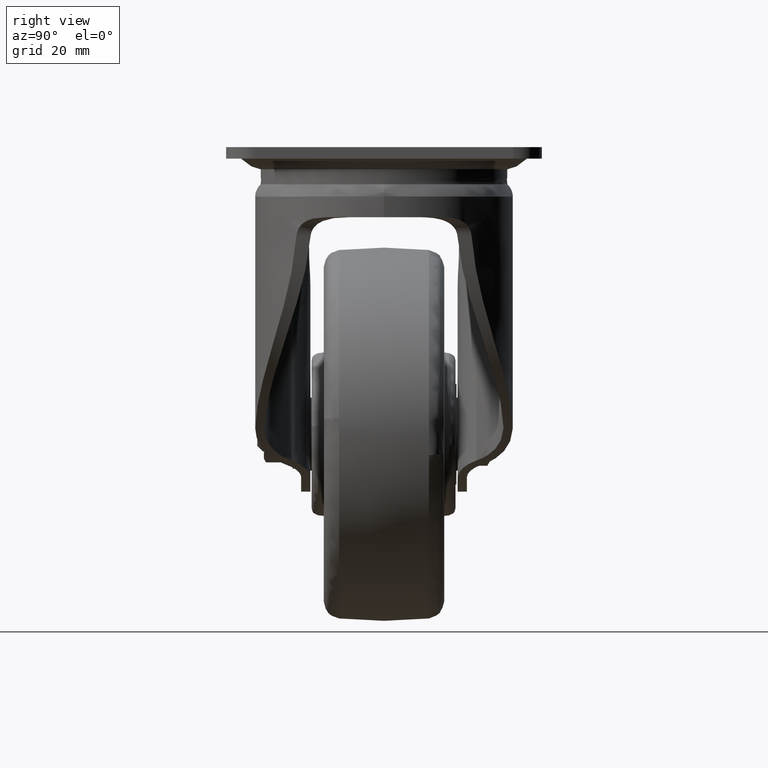
[diagram: clean part render]
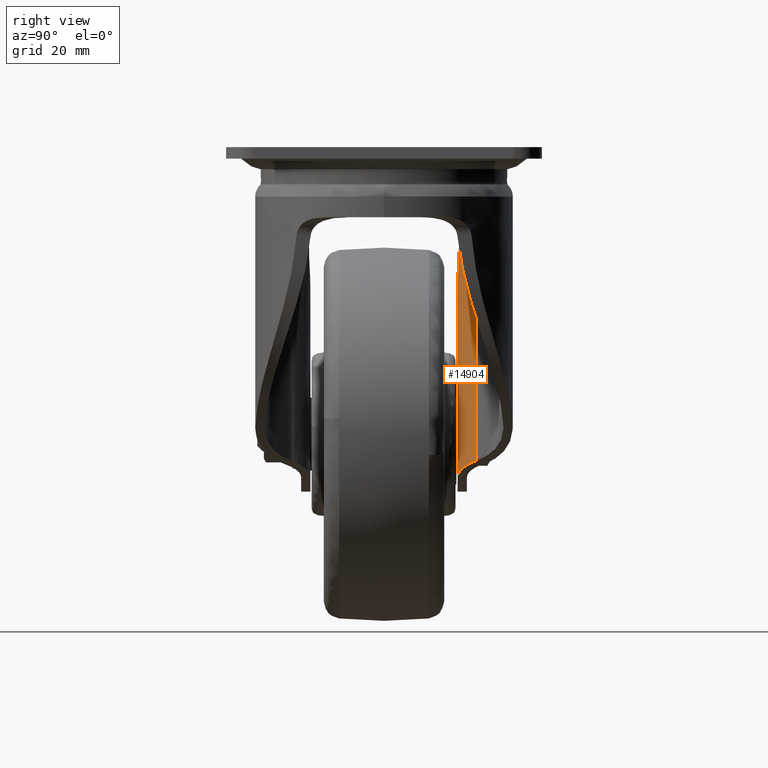
[diagram: same view with one face highlighted and labeled with its STEP entity id]
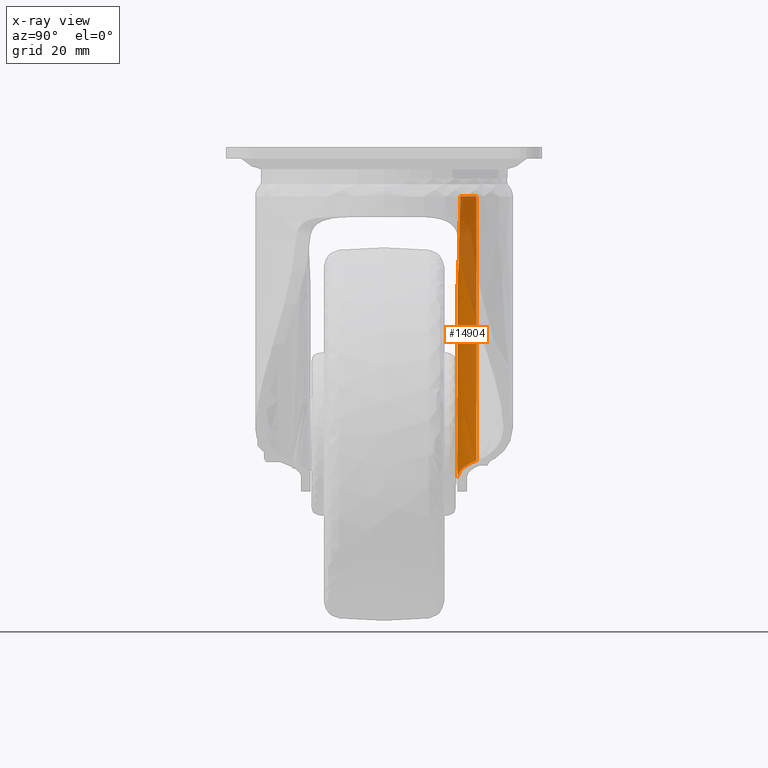
[diagram: x-ray of the same camera — body ghosted, the highlighted face saturated]
A machine part, right view. The second image highlights one B-rep face of the part: STEP entity #14904.
The next image is the same camera in x-ray: the body ghosted, the highlighted face saturated — about 31% of this face is hidden behind the body in this view.
In plain terms, the highlighted face is a freeform B-spline surface patch.
Its self-contained STEP definition (entity closure, byte-faithful):
#14250=CARTESIAN_POINT('',(-30.971173409171350,26.639348241174300,-17.143462153131100));
#14251=VERTEX_POINT('',#14250);
#14426=CARTESIAN_POINT('',(-24.551106778186650,32.171004480450897,-17.198692286226951));
#14427=VERTEX_POINT('',#14426);
#14440=CARTESIAN_POINT('',(-24.551106778186650,32.171004480450897,-17.198692286226951));
#14441=CARTESIAN_POINT('',(-26.821111910185206,28.330591171230029,-17.179164033208107));
#14442=CARTESIAN_POINT('',(-30.971173409171350,26.639348241174321,-17.143462153131232));
#14450=(BOUNDED_CURVE()B_SPLINE_CURVE(2,(#14440,#14441,#14442),.UNSPECIFIED.,.F.,.U.)CURVE()GEOMETRIC_REPRESENTATION_ITEM()QUASI_UNIFORM_CURVE()RATIONAL_B_SPLINE_CURVE((1.0,0.947548087643073,1.0))REPRESENTATION_ITEM(''));
#14451=EDGE_CURVE('',#14427,#14251,#14450,.T.);
#14611=CARTESIAN_POINT('',(-30.556049369187651,26.109934094623402,-34.380707880840554));
#14612=VERTEX_POINT('',#14611);
#14613=CARTESIAN_POINT('',(-30.971173409171289,26.639348241174300,-17.143462153131100));
#14614=CARTESIAN_POINT('',(-30.920320557739402,26.525135809695101,-20.015882535986400));
#14615=CARTESIAN_POINT('',(-30.858088342253708,26.426504407636351,-22.888715320616772));
#14616=CARTESIAN_POINT('',(-30.717953176934891,26.252122809537219,-28.634533617746861));
#14617=CARTESIAN_POINT('',(-30.639968681134430,26.176460764392811,-31.507567129741300));
#14618=CARTESIAN_POINT('',(-30.556049369187551,26.109934094623451,-34.380707880840497));
#14619=B_SPLINE_CURVE_WITH_KNOTS('',3,(#14613,#14614,#14615,#14616,#14617,#14618),.UNSPECIFIED.,.F.,.U.,(4,2,4),(0.0,0.500000000000000,1.0),.UNSPECIFIED.);
#14620=EDGE_CURVE('',#14251,#14612,#14619,.T.);
#14817=CARTESIAN_POINT('',(-12.872656363851791,32.673992637349997,-116.143241623702100));
#14818=CARTESIAN_POINT('',(-24.650034243257920,32.673992637349997,-13.888307063013070));
#14819=CARTESIAN_POINT('',(-16.776211810868112,25.251694795586719,-116.592839951354890));
#14820=CARTESIAN_POINT('',(-28.553589690274240,25.251694795586719,-14.337905390665801));
#14821=CARTESIAN_POINT('',(-25.109130929931094,25.666078180460676,-117.552597421499100));
#14822=CARTESIAN_POINT('',(-36.886508809337215,25.666078180460683,-15.297662860810046));
#14830=(BOUNDED_SURFACE()B_SPLINE_SURFACE(1,2,((#14817,#14819,#14821),(#14818,#14820,#14822)),.UNSPECIFIED.,.F.,.F.,.U.)B_SPLINE_SURFACE_WITH_KNOTS((2,2),(3,3),(0.0,102.930939331792400),(0.0,15.372673930811610),.UNSPECIFIED.)GEOMETRIC_REPRESENTATION_ITEM()RATIONAL_B_SPLINE_SURFACE(((1.0,0.843565671387457,0.999651936499553),(1.0,0.843565671387457,0.999651936499553)))REPRESENTATION_ITEM('')SURFACE());
#14831=CARTESIAN_POINT('',(-13.958340382854940,32.171004480450897,-109.168453778326590));
#14832=VERTEX_POINT('',#14831);
#14833=CARTESIAN_POINT('',(-24.551106778186650,32.171004480450897,-17.198692286226951));
#14834=CARTESIAN_POINT('',(-13.958340382854940,32.171004480450897,-109.168453778326590));
#14835=QUASI_UNIFORM_CURVE('',1,(#14833,#14834),.UNSPECIFIED.,.F.,.U.);
#14836=EDGE_CURVE('',#14427,#14832,#14835,.T.);
#14837=ORIENTED_EDGE('',*,*,#14836,.F.);
#14838=ORIENTED_EDGE('',*,*,#14451,.T.);
#14839=ORIENTED_EDGE('',*,*,#14620,.T.);
#14840=CARTESIAN_POINT('',(-31.237337067700651,25.745815892078902,-44.778439230526402));
#14841=VERTEX_POINT('',#14840);
#14842=CARTESIAN_POINT('',(-31.237337067700651,25.745815892078902,-44.778439230526402));
#14843=CARTESIAN_POINT('',(-30.978908773722861,25.788623989268871,-43.934019730008259));
#14844=CARTESIAN_POINT('',(-30.771909170149218,25.839556409856701,-43.082251767322468));
#14845=CARTESIAN_POINT('',(-30.457270743496050,25.937722614007392,-41.363544853443479));
#14846=CARTESIAN_POINT('',(-30.349645451878470,25.984993828519539,-40.496605740616140));
#14847=CARTESIAN_POINT('',(-30.263507646834700,26.042271943714049,-39.184156322181543));
#14848=CARTESIAN_POINT('',(-30.247378774990359,26.059131562532212,-38.744663233488353));
#14849=CARTESIAN_POINT('',(-30.242471230641080,26.080061038502429,-38.082296095040789));
#14850=CARTESIAN_POINT('',(-30.244064102876870,26.086297472831468,-37.861415432882808));
#14851=CARTESIAN_POINT('',(-30.253634623318860,26.097139845837859,-37.421292536898591));
#14852=CARTESIAN_POINT('',(-30.261609345665661,26.101754693660990,-37.201776120214817));
#14853=CARTESIAN_POINT('',(-30.317245325498590,26.120638870601550,-36.106890203031000));
#14854=CARTESIAN_POINT('',(-30.412034311403900,26.122079258796489,-35.239585776597110));
#14855=CARTESIAN_POINT('',(-30.556049369187701,26.109934094623419,-34.380707880840554));
#14856=B_SPLINE_CURVE_WITH_KNOTS('',3,(#14842,#14843,#14844,#14845,#14846,#14847,#14848,#14849,#14850,#14851,#14852,#14853,#14854,#14855),.UNSPECIFIED.,.F.,.U.,(4,2,2,2,2,2,4),(0.0,0.250000000000002,0.500000000000004,0.625000000000004,0.687500000000003,0.750000000000002,1.0),.UNSPECIFIED.);
#14857=EDGE_CURVE('',#14841,#14612,#14856,.T.);
#14858=ORIENTED_EDGE('',*,*,#14857,.F.);
#14859=CARTESIAN_POINT('',(-32.416170370900097,25.649999999999999,-48.418291229624003));
#14860=VERTEX_POINT('',#14859);
#14861=CARTESIAN_POINT('',(-32.416170370900097,25.649999999999999,-48.418291229624003));
#14862=CARTESIAN_POINT('',(-32.003289571279382,25.650000000000048,-47.210623233784460));
#14863=CARTESIAN_POINT('',(-31.610385084794920,25.684021278736900,-45.997381120087013));
#14864=CARTESIAN_POINT('',(-31.237337067700651,25.745815892078951,-44.778439230526402));
#14865=QUASI_UNIFORM_CURVE('',3,(#14861,#14862,#14863,#14864),.UNSPECIFIED.,.F.,.U.);
#14866=EDGE_CURVE('',#14860,#14841,#14865,.T.);
#14867=ORIENTED_EDGE('',*,*,#14866,.F.);
#14868=CARTESIAN_POINT('',(-24.742344826114799,25.649999999999999,-115.044881371074000));
#14869=VERTEX_POINT('',#14868);
#14870=CARTESIAN_POINT('',(-24.742344826114799,25.649999999999999,-115.044881371074000));
#14871=CARTESIAN_POINT('',(-32.416170370900097,25.649999999999999,-48.418291229624003));
#14872=QUASI_UNIFORM_CURVE('',1,(#14870,#14871),.UNSPECIFIED.,.F.,.U.);
#14873=EDGE_CURVE('',#14869,#14860,#14872,.T.);
#14874=ORIENTED_EDGE('',*,*,#14873,.F.);
#14875=CARTESIAN_POINT('',(-13.958340382854921,32.171004480450847,-109.168453778326590));
#14876=CARTESIAN_POINT('',(-14.239973044269711,31.659610616310260,-109.345089740962610));
#14877=CARTESIAN_POINT('',(-14.548974073648511,31.177405962525050,-109.536945877620100));
#14878=CARTESIAN_POINT('',(-15.218315792652380,30.266539452180719,-109.946697831210300));
#14879=CARTESIAN_POINT('',(-15.578678074256990,29.837904110704390,-110.164612877517200));
#14880=CARTESIAN_POINT('',(-16.157555264442589,29.234021771627852,-110.509047556987500));
#14881=CARTESIAN_POINT('',(-16.356925479584230,29.039262793098779,-110.626797831267890));
#14882=CARTESIAN_POINT('',(-16.665773346095548,28.756994483524810,-110.807680421025000));
#14883=CARTESIAN_POINT('',(-16.770503620290199,28.664433193827939,-110.868769807778700));
#14884=CARTESIAN_POINT('',(-16.981887656315770,28.483789938574830,-110.991546656598300));
#14885=CARTESIAN_POINT('',(-17.088668048915419,28.395583682360542,-111.053308965790710));
#14886=CARTESIAN_POINT('',(-17.627950912562511,27.964932927708670,-111.363883182792190));
#14887=CARTESIAN_POINT('',(-18.076526725119301,27.653482018748178,-111.617944744232300));
#14888=CARTESIAN_POINT('',(-19.007577097994769,27.094190323330800,-112.135203847868300));
#14889=CARTESIAN_POINT('',(-19.490052596676492,26.846356801636379,-112.398407711471290));
#14890=CARTESIAN_POINT('',(-20.240174989927940,26.523101492869309,-112.799161035311100));
#14891=CARTESIAN_POINT('',(-20.495273433014290,26.423283881461899,-112.934071726602000));
#14892=CARTESIAN_POINT('',(-21.008030521626679,26.242465423836371,-113.202379907250700));
#14893=CARTESIAN_POINT('',(-21.266329284853221,26.161140639905941,-113.336126144045390));
#14894=CARTESIAN_POINT('',(-22.046966986600619,25.943942291458601,-113.735998783871910));
#14895=CARTESIAN_POINT('',(-22.575029827013491,25.834731898731491,-114.000751453402400));
#14896=CARTESIAN_POINT('',(-23.646757711610629,25.687768257995842,-114.526048784842900));
#14897=CARTESIAN_POINT('',(-24.190419564457390,25.649999999999999,-114.786594158005300));
#14898=CARTESIAN_POINT('',(-24.742344826114799,25.649999999999999,-115.044881371074000));
#14899=B_SPLINE_CURVE_WITH_KNOTS('',3,(#14875,#14876,#14877,#14878,#14879,#14880,#14881,#14882,#14883,#14884,#14885,#14886,#14887,#14888,#14889,#14890,#14891,#14892,#14893,#14894,#14895,#14896,#14897,#14898),.UNSPECIFIED.,.F.,.U.,(4,2,2,2,2,2,2,2,2,2,2,4),(0.0,0.125000000000002,0.250000000000005,0.312500000000006,0.343750000000006,0.375000000000006,0.500000000000006,0.625000000000006,0.687500000000006,0.750000000000005,0.875000000000003,1.0),.UNSPECIFIED.);
#14900=EDGE_CURVE('',#14832,#14869,#14899,.T.);
#14901=ORIENTED_EDGE('',*,*,#14900,.F.);
#14902=EDGE_LOOP('',(#14837,#14838,#14839,#14858,#14867,#14874,#14901));
#14903=FACE_OUTER_BOUND('',#14902,.T.);
#14904=ADVANCED_FACE('',(#14903),#14830,.T.);